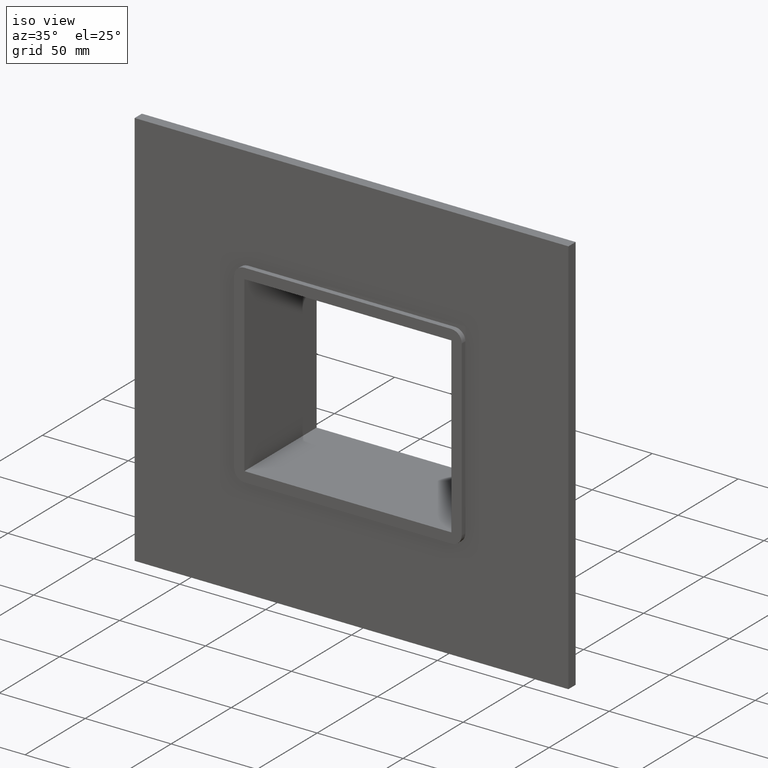
[diagram: clean part render]
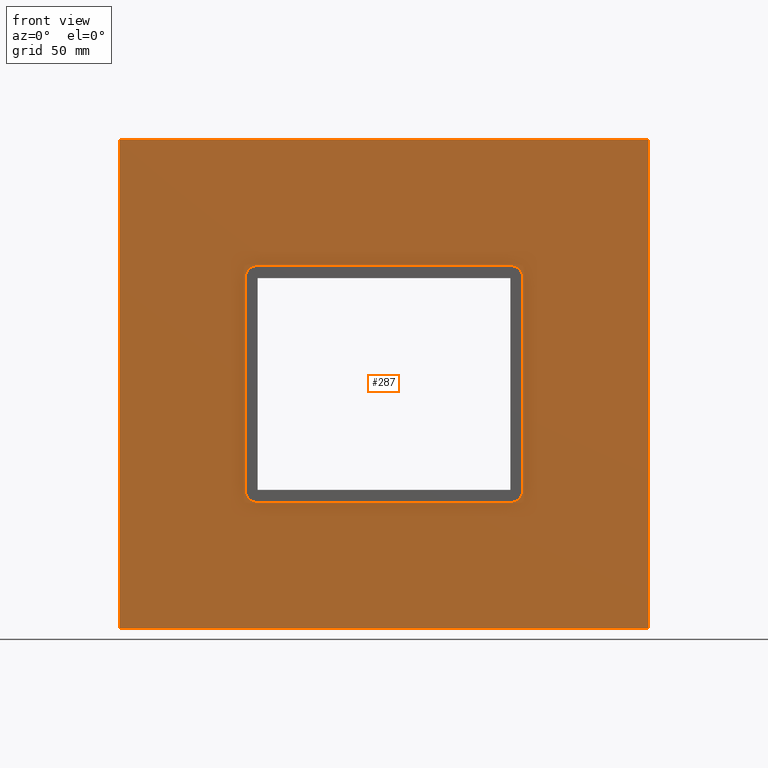
[diagram: tour spotlight — one face highlighted and labeled with its STEP entity id]
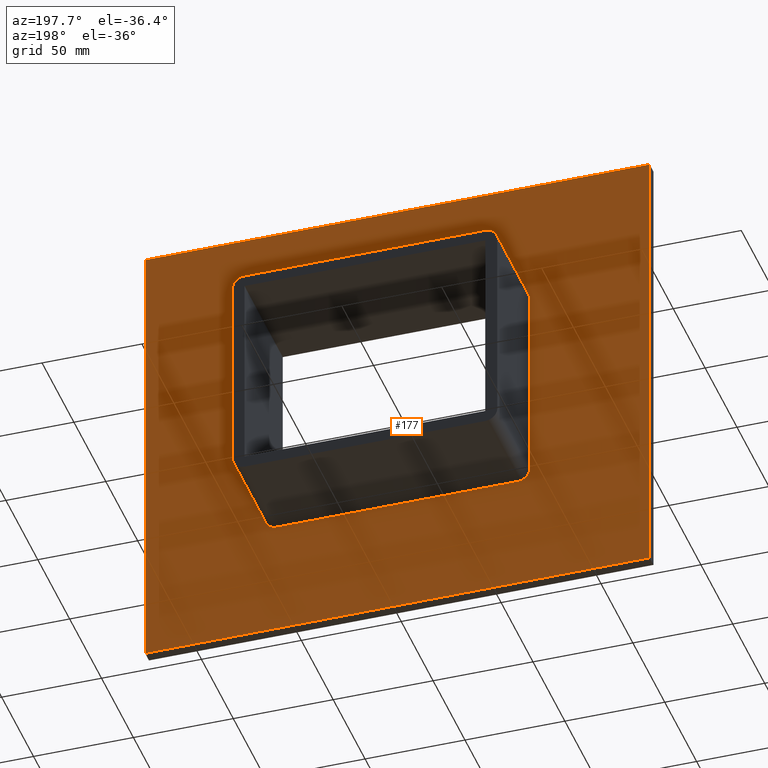
[diagram: tour spotlight — one face highlighted and labeled with its STEP entity id]
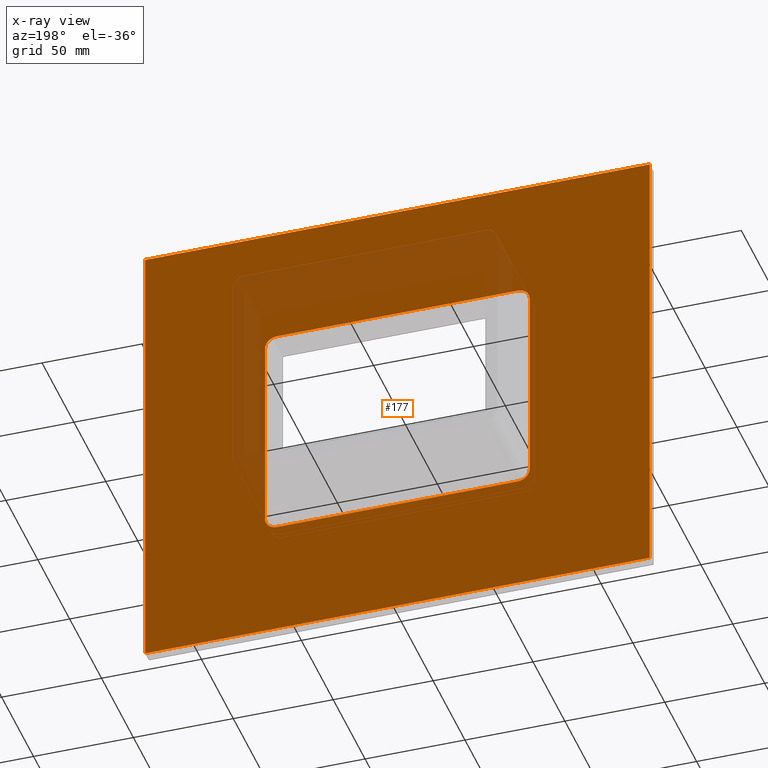
[diagram: x-ray of the same camera — body ghosted, this tour face saturated]
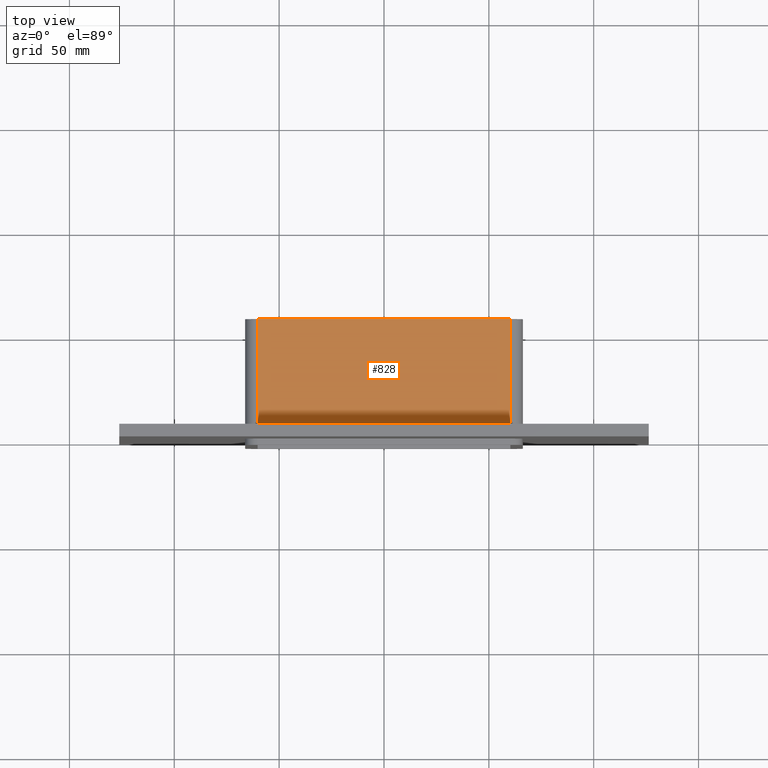
[diagram: tour spotlight — one face highlighted and labeled with its STEP entity id]
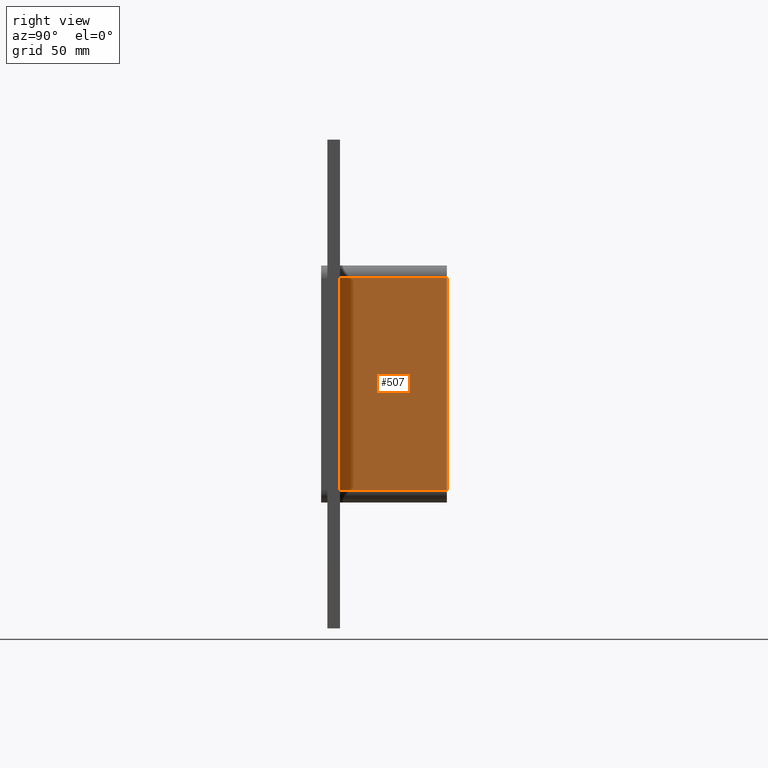
[diagram: tour spotlight — one face highlighted and labeled with its STEP entity id]
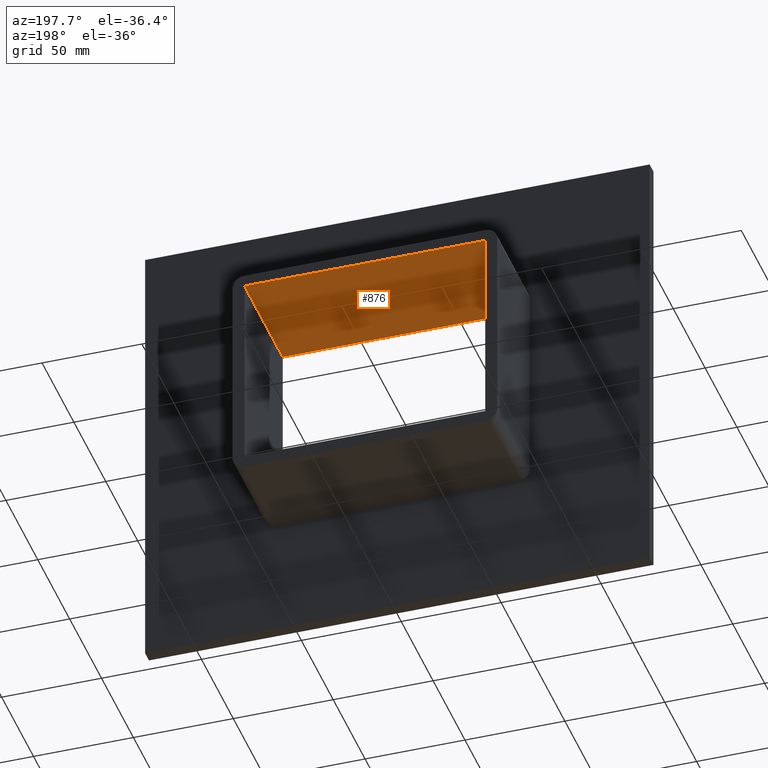
[diagram: tour spotlight — one face highlighted and labeled with its STEP entity id]
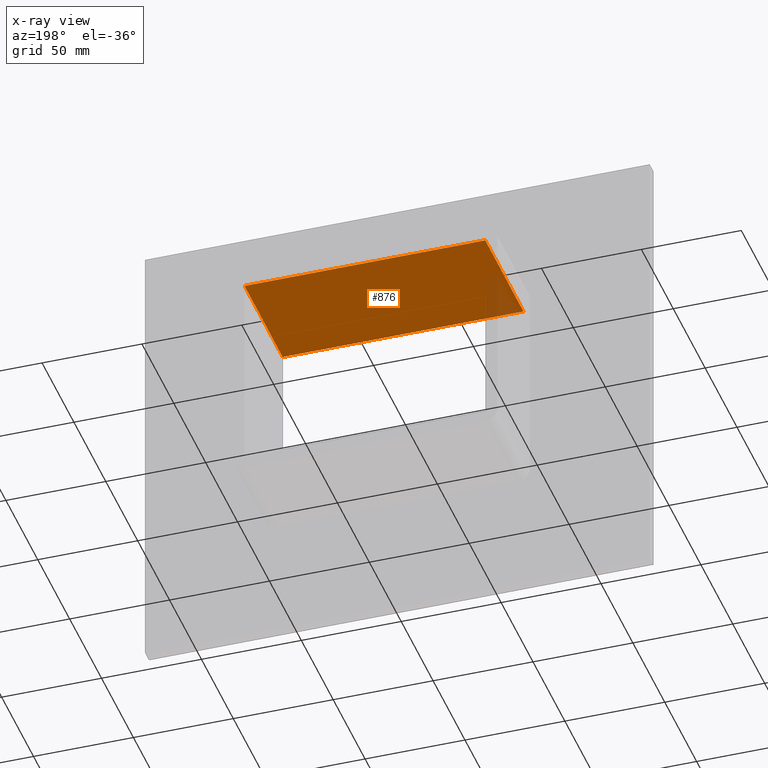
[diagram: x-ray of the same camera — body ghosted, this tour face saturated]
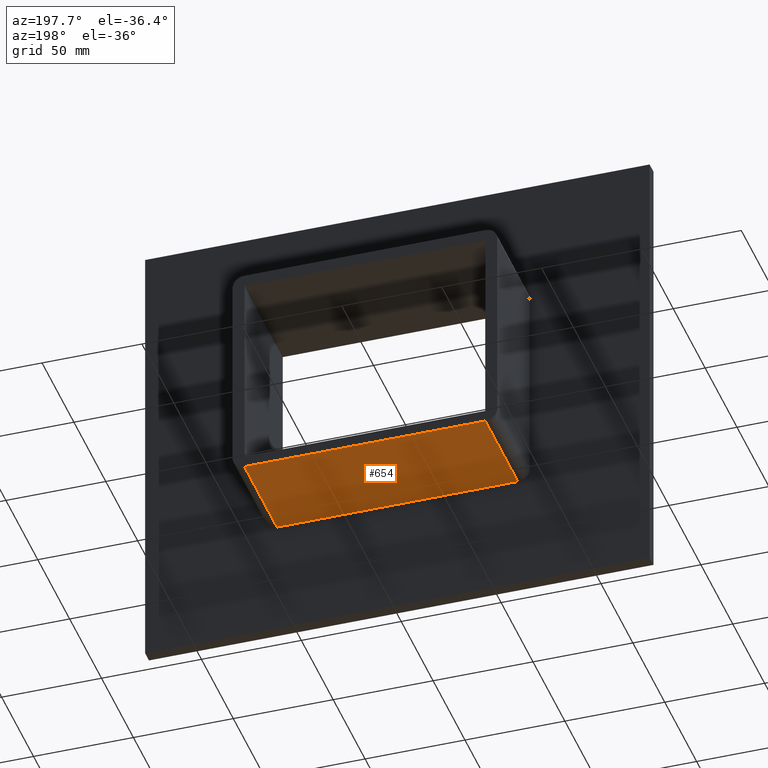
[diagram: tour spotlight — one face highlighted and labeled with its STEP entity id]
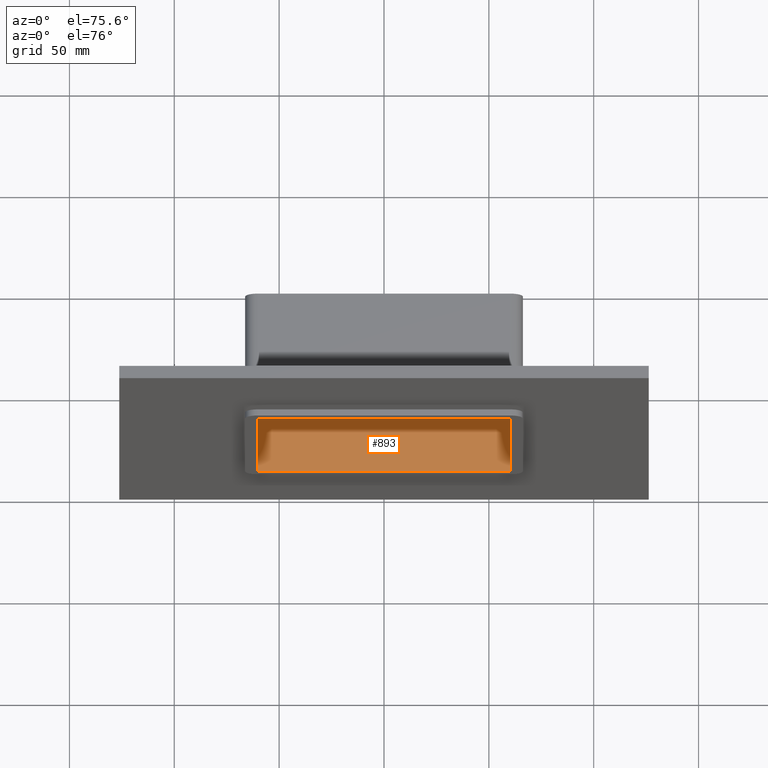
[diagram: tour spotlight — one face highlighted and labeled with its STEP entity id]
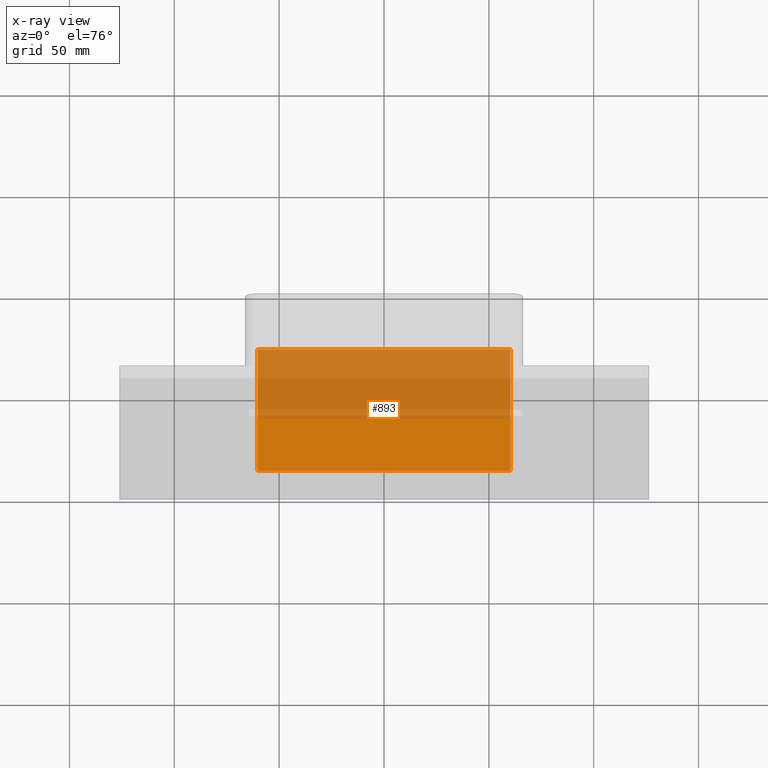
[diagram: x-ray of the same camera — body ghosted, this tour face saturated]
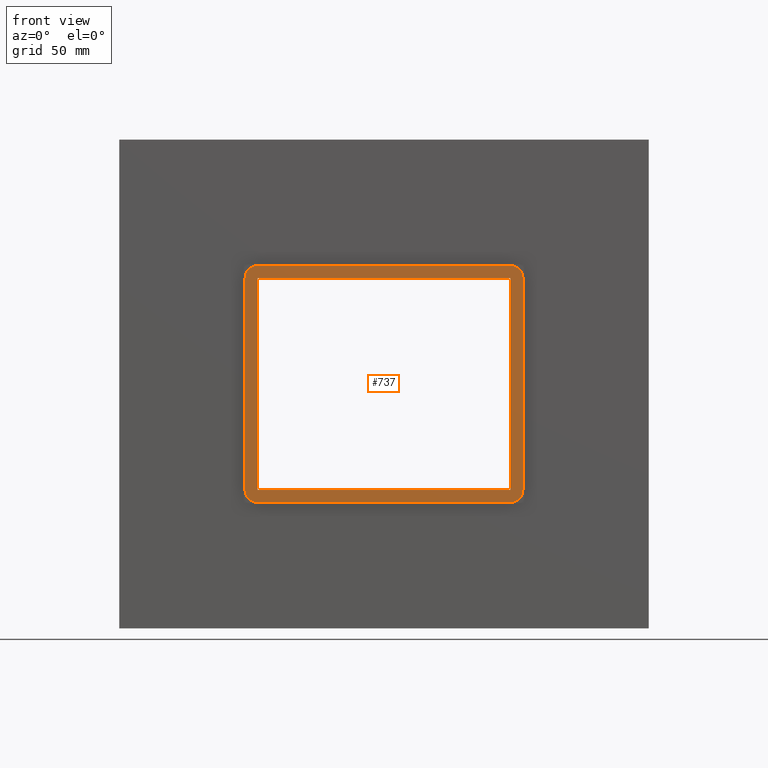
[diagram: tour spotlight — one face highlighted and labeled with its STEP entity id]
A machine part: a face-by-face anatomy tour. The part has 28 B-rep faces; the first image is the clean iso view, then the 8 largest visible faces are spotlighted one at a time (largest first), each with its STEP entity span.

Face 1 — front view, entity #287. In plain terms, the highlighted planar face has unit normal (0, 1, 0).
Definition (entity closure, byte-faithful):
#178=CARTESIAN_POINT('',(-8.781167E-015,0.0,-8.781167E-015));
#179=DIRECTION('',(0.0,1.0,0.0));
#180=DIRECTION('',(0.0,0.0,1.0));
#181=AXIS2_PLACEMENT_3D('',#178,#179,#180);
#182=PLANE('',#181);
#183=CARTESIAN_POINT('',(-126.25,0.0,116.5));
#184=VERTEX_POINT('',#183);
#185=CARTESIAN_POINT('',(126.24999999999999,0.0,116.5));
#186=VERTEX_POINT('',#185);
#187=CARTESIAN_POINT('',(-126.25,0.0,116.5));
#188=DIRECTION('',(1.0,0.0,0.0));
#189=VECTOR('',#188,252.5);
#190=LINE('',#187,#189);
#191=EDGE_CURVE('',#184,#186,#190,.T.);
#192=ORIENTED_EDGE('',*,*,#191,.F.);
#193=CARTESIAN_POINT('',(-126.25,0.0,-116.50000000000003));
#194=VERTEX_POINT('',#193);
#195=CARTESIAN_POINT('',(-126.25,0.0,-116.50000000000003));
#196=DIRECTION('',(0.0,0.0,1.0));
#197=VECTOR('',#196,233.00000000000006);
#198=LINE('',#195,#197);
#199=EDGE_CURVE('',#194,#184,#198,.T.);
#200=ORIENTED_EDGE('',*,*,#199,.F.);
#201=CARTESIAN_POINT('',(126.24999999999999,0.0,-116.50000000000003));
#202=VERTEX_POINT('',#201);
#203=CARTESIAN_POINT('',(126.24999999999999,0.0,-116.50000000000003));
#204=DIRECTION('',(-1.0,0.0,0.0));
#205=VECTOR('',#204,252.5);
#206=LINE('',#203,#205);
#207=EDGE_CURVE('',#202,#194,#206,.T.);
#208=ORIENTED_EDGE('',*,*,#207,.F.);
#209=CARTESIAN_POINT('',(126.24999999999999,0.0,116.5));
#210=DIRECTION('',(0.0,0.0,-1.0));
#211=VECTOR('',#210,233.00000000000006);
#212=LINE('',#209,#211);
#213=EDGE_CURVE('',#186,#202,#212,.T.);
#214=ORIENTED_EDGE('',*,*,#213,.F.);
#215=EDGE_LOOP('',(#192,#200,#208,#214));
#216=FACE_OUTER_BOUND('',#215,.T.);
#217=CARTESIAN_POINT('',(-66.249999999999986,0.0,-50.500000000000007));
#218=VERTEX_POINT('',#217);
#219=CARTESIAN_POINT('',(-60.249999999999986,0.0,-56.5));
#220=VERTEX_POINT('',#219);
#221=CARTESIAN_POINT('',(-60.249999999999986,0.0,-50.500000000000007));
#222=DIRECTION('',(0.0,-1.0,0.0));
#223=DIRECTION('',(-0.707106781186549,0.0,-0.707106781186546));
#224=AXIS2_PLACEMENT_3D('',#221,#222,#223);
#225=CIRCLE('',#224,6.000000000000001);
#226=EDGE_CURVE('',#218,#220,#225,.T.);
#227=ORIENTED_EDGE('',*,*,#226,.F.);
#228=CARTESIAN_POINT('',(-66.249999999999986,0.0,50.500000000000007));
#229=VERTEX_POINT('',#228);
#230=CARTESIAN_POINT('',(-66.249999999999986,0.0,50.500000000000007));
#231=DIRECTION('',(0.0,0.0,-1.0));
#232=VECTOR('',#231,101.00000000000001);
#233=LINE('',#230,#232);
#234=EDGE_CURVE('',#229,#218,#233,.T.);
#235=ORIENTED_EDGE('',*,*,#234,.F.);
#236=CARTESIAN_POINT('',(-60.249999999999986,0.0,56.5));
#237=VERTEX_POINT('',#236);
#238=CARTESIAN_POINT('',(-60.249999999999986,0.0,50.500000000000007));
#239=DIRECTION('',(0.0,-1.0,0.0));
#240=DIRECTION('',(-0.707106781186549,0.0,0.707106781186546));
#241=AXIS2_PLACEMENT_3D('',#238,#239,#240);
#242=CIRCLE('',#241,6.000000000000001);
#243=EDGE_CURVE('',#237,#229,#242,.T.);
#244=ORIENTED_EDGE('',*,*,#243,.F.);
#245=CARTESIAN_POINT('',(60.25,0.0,56.5));
#246=VERTEX_POINT('',#245);
#247=CARTESIAN_POINT('',(60.25,0.0,56.5));
#248=DIRECTION('',(-1.0,0.0,0.0));
#249=VECTOR('',#248,120.49999999999999);
#250=LINE('',#247,#249);
#251=EDGE_CURVE('',#246,#237,#250,.T.);
#252=ORIENTED_EDGE('',*,*,#251,.F.);
#253=CARTESIAN_POINT('',(66.250000000000014,0.0,50.500000000000007));
#254=VERTEX_POINT('',#253);
#255=CARTESIAN_POINT('',(60.25,0.0,50.500000000000007));
#256=DIRECTION('',(0.0,-1.0,0.0));
#257=DIRECTION('',(0.707106781186549,0.0,0.707106781186546));
#258=AXIS2_PLACEMENT_3D('',#255,#256,#257);
#259=CIRCLE('',#258,6.000000000000001);
#260=EDGE_CURVE('',#254,#246,#259,.T.);
#261=ORIENTED_EDGE('',*,*,#260,.F.);
#262=CARTESIAN_POINT('',(66.250000000000014,0.0,-50.500000000000007));
#263=VERTEX_POINT('',#262);
#264=CARTESIAN_POINT('',(66.250000000000014,0.0,-50.5));
#265=DIRECTION('',(0.0,0.0,1.0));
#266=VECTOR('',#265,101.0);
#267=LINE('',#264,#266);
#268=EDGE_CURVE('',#263,#254,#267,.T.);
#269=ORIENTED_EDGE('',*,*,#268,.F.);
#270=CARTESIAN_POINT('',(60.25,0.0,-56.5));
#271=VERTEX_POINT('',#270);
#272=CARTESIAN_POINT('',(60.25,0.0,-50.500000000000007));
#273=DIRECTION('',(0.0,-1.0,0.0));
#274=DIRECTION('',(0.707106781186549,0.0,-0.707106781186546));
#275=AXIS2_PLACEMENT_3D('',#272,#273,#274);
#276=CIRCLE('',#275,6.000000000000001);
#277=EDGE_CURVE('',#271,#263,#276,.T.);
#278=ORIENTED_EDGE('',*,*,#277,.F.);
#279=CARTESIAN_POINT('',(-60.249999999999986,0.0,-56.5));
#280=DIRECTION('',(1.0,0.0,0.0));
#281=VECTOR('',#280,120.49999999999999);
#282=LINE('',#279,#281);
#283=EDGE_CURVE('',#220,#271,#282,.T.);
#284=ORIENTED_EDGE('',*,*,#283,.F.);
#285=EDGE_LOOP('',(#227,#235,#244,#252,#261,#269,#278,#284));
#286=FACE_BOUND('',#285,.T.);
#287=ADVANCED_FACE('',(#216,#286),#182,.F.);

Face 2 — auxiliary view, entity #177. An x-ray twin of the same camera follows (body ghosted, this face saturated) — the face is partly hidden behind the body. In plain terms, the highlighted planar face has unit normal (0, 1, 0).
Definition (entity closure, byte-faithful):
#68=CARTESIAN_POINT('',(-8.781167E-015,6.000000000000001,-8.781167E-015));
#69=DIRECTION('',(0.0,1.0,0.0));
#70=DIRECTION('',(0.0,0.0,1.0));
#71=AXIS2_PLACEMENT_3D('',#68,#69,#70);
#72=PLANE('',#71);
#73=CARTESIAN_POINT('',(-126.25,6.000000000000001,116.5));
#74=VERTEX_POINT('',#73);
#75=CARTESIAN_POINT('',(126.25,6.000000000000001,116.5));
#76=VERTEX_POINT('',#75);
#77=CARTESIAN_POINT('',(-126.25,6.000000000000001,116.5));
#78=DIRECTION('',(1.0,0.0,0.0));
#79=VECTOR('',#78,252.5);
#80=LINE('',#77,#79);
#81=EDGE_CURVE('',#74,#76,#80,.T.);
#82=ORIENTED_EDGE('',*,*,#81,.T.);
#83=CARTESIAN_POINT('',(126.25,6.000000000000001,-116.50000000000004));
#84=VERTEX_POINT('',#83);
#85=CARTESIAN_POINT('',(126.24999999999999,6.000000000000001,116.5));
#86=DIRECTION('',(0.0,0.0,-1.0));
#87=VECTOR('',#86,233.00000000000006);
#88=LINE('',#85,#87);
#89=EDGE_CURVE('',#76,#84,#88,.T.);
#90=ORIENTED_EDGE('',*,*,#89,.T.);
#91=CARTESIAN_POINT('',(-126.25,6.000000000000001,-116.50000000000004));
#92=VERTEX_POINT('',#91);
#93=CARTESIAN_POINT('',(126.24999999999999,6.000000000000001,-116.50000000000003));
#94=DIRECTION('',(-1.0,0.0,0.0));
#95=VECTOR('',#94,252.5);
#96=LINE('',#93,#95);
#97=EDGE_CURVE('',#84,#92,#96,.T.);
#98=ORIENTED_EDGE('',*,*,#97,.T.);
#99=CARTESIAN_POINT('',(-126.25,6.000000000000001,-116.50000000000003));
#100=DIRECTION('',(0.0,0.0,1.0));
#101=VECTOR('',#100,233.00000000000006);
#102=LINE('',#99,#101);
#103=EDGE_CURVE('',#92,#74,#102,.T.);
#104=ORIENTED_EDGE('',*,*,#103,.T.);
#105=EDGE_LOOP('',(#82,#90,#98,#104));
#106=FACE_OUTER_BOUND('',#105,.T.);
#107=CARTESIAN_POINT('',(-60.249999999999986,6.000000000000001,-56.5));
#108=VERTEX_POINT('',#107);
#109=CARTESIAN_POINT('',(-66.249999999999986,6.000000000000001,-50.500000000000007));
#110=VERTEX_POINT('',#109);
#111=CARTESIAN_POINT('',(-60.249999999999986,6.000000000000001,-50.500000000000007));
#112=DIRECTION('',(0.0,1.0,0.0));
#113=DIRECTION('',(-0.707106781186549,0.0,-0.707106781186546));
#114=AXIS2_PLACEMENT_3D('',#111,#112,#113);
#115=CIRCLE('',#114,6.000000000000001);
#116=EDGE_CURVE('',#108,#110,#115,.T.);
#117=ORIENTED_EDGE('',*,*,#116,.F.);
#118=CARTESIAN_POINT('',(60.25,6.000000000000001,-56.5));
#119=VERTEX_POINT('',#118);
#120=CARTESIAN_POINT('',(60.25,6.000000000000001,-56.5));
#121=DIRECTION('',(-1.0,0.0,0.0));
#122=VECTOR('',#121,120.49999999999999);
#123=LINE('',#120,#122);
#124=EDGE_CURVE('',#119,#108,#123,.T.);
#125=ORIENTED_EDGE('',*,*,#124,.F.);
#126=CARTESIAN_POINT('',(66.250000000000014,6.000000000000001,-50.500000000000007));
#127=VERTEX_POINT('',#126);
#128=CARTESIAN_POINT('',(60.25,6.000000000000001,-50.500000000000007));
#129=DIRECTION('',(0.0,1.0,0.0));
#130=DIRECTION('',(0.707106781186549,0.0,-0.707106781186546));
#131=AXIS2_PLACEMENT_3D('',#128,#129,#130);
#132=CIRCLE('',#131,6.000000000000001);
#133=EDGE_CURVE('',#127,#119,#132,.T.);
#134=ORIENTED_EDGE('',*,*,#133,.F.);
#135=CARTESIAN_POINT('',(66.250000000000014,6.000000000000001,50.500000000000007));
#136=VERTEX_POINT('',#135);
#137=CARTESIAN_POINT('',(66.250000000000014,6.000000000000001,50.500000000000007));
#138=DIRECTION('',(0.0,0.0,-1.0));
#139=VECTOR('',#138,101.0);
#140=LINE('',#137,#139);
#141=EDGE_CURVE('',#136,#127,#140,.T.);
#142=ORIENTED_EDGE('',*,*,#141,.F.);
#143=CARTESIAN_POINT('',(60.25,6.000000000000001,56.5));
#144=VERTEX_POINT('',#143);
#145=CARTESIAN_POINT('',(60.25,6.000000000000001,50.500000000000007));
#146=DIRECTION('',(0.0,1.0,0.0));
#147=DIRECTION('',(0.707106781186549,0.0,0.707106781186546));
#148=AXIS2_PLACEMENT_3D('',#145,#146,#147);
#149=CIRCLE('',#148,6.000000000000001);
#150=EDGE_CURVE('',#144,#136,#149,.T.);
#151=ORIENTED_EDGE('',*,*,#150,.F.);
#152=CARTESIAN_POINT('',(-60.249999999999986,6.000000000000001,56.5));
#153=VERTEX_POINT('',#152);
#154=CARTESIAN_POINT('',(-60.249999999999986,6.000000000000001,56.5));
#155=DIRECTION('',(1.0,0.0,0.0));
#156=VECTOR('',#155,120.49999999999999);
#157=LINE('',#154,#156);
#158=EDGE_CURVE('',#153,#144,#157,.T.);
#159=ORIENTED_EDGE('',*,*,#158,.F.);
#160=CARTESIAN_POINT('',(-66.249999999999986,6.000000000000001,50.500000000000007));
#161=VERTEX_POINT('',#160);
#162=CARTESIAN_POINT('',(-60.249999999999986,6.000000000000001,50.500000000000007));
#163=DIRECTION('',(0.0,1.0,0.0));
#164=DIRECTION('',(-0.707106781186549,0.0,0.707106781186546));
#165=AXIS2_PLACEMENT_3D('',#162,#163,#164);
#166=CIRCLE('',#165,6.000000000000001);
#167=EDGE_CURVE('',#161,#153,#166,.T.);
#168=ORIENTED_EDGE('',*,*,#167,.F.);
#169=CARTESIAN_POINT('',(-66.249999999999986,6.000000000000001,-50.500000000000007));
#170=DIRECTION('',(0.0,0.0,1.0));
#171=VECTOR('',#170,101.00000000000001);
#172=LINE('',#169,#171);
#173=EDGE_CURVE('',#110,#161,#172,.T.);
#174=ORIENTED_EDGE('',*,*,#173,.F.);
#175=EDGE_LOOP('',(#117,#125,#134,#142,#151,#159,#168,#174));
#176=FACE_BOUND('',#175,.T.);
#177=ADVANCED_FACE('',(#106,#176),#72,.T.);

Face 3 — top view, entity #828. In plain terms, the highlighted planar face has unit normal (0, 0, 1).
Definition (entity closure, byte-faithful):
#143=CARTESIAN_POINT('',(60.25,6.000000000000001,56.5));
#144=VERTEX_POINT('',#143);
#152=CARTESIAN_POINT('',(-60.249999999999986,6.000000000000001,56.5));
#153=VERTEX_POINT('',#152);
#154=CARTESIAN_POINT('',(-60.249999999999986,6.000000000000001,56.5));
#155=DIRECTION('',(1.0,0.0,0.0));
#156=VECTOR('',#155,120.49999999999999);
#157=LINE('',#154,#156);
#158=EDGE_CURVE('',#153,#144,#157,.T.);
#442=CARTESIAN_POINT('',(60.249999999999993,57.0,56.5));
#443=VERTEX_POINT('',#442);
#451=CARTESIAN_POINT('',(60.25,57.0,56.5));
#452=DIRECTION('',(0.0,-1.0,0.0));
#453=VECTOR('',#452,51.0);
#454=LINE('',#451,#453);
#455=EDGE_CURVE('',#443,#144,#454,.T.);
#793=CARTESIAN_POINT('',(-60.249999999999986,57.0,56.5));
#794=VERTEX_POINT('',#793);
#795=CARTESIAN_POINT('',(-60.249999999999986,6.000000000000001,56.5));
#796=DIRECTION('',(0.0,1.0,0.0));
#797=VECTOR('',#796,51.0);
#798=LINE('',#795,#797);
#799=EDGE_CURVE('',#153,#794,#798,.T.);
#812=CARTESIAN_POINT('',(-66.249999999999986,0.0,56.5));
#813=DIRECTION('',(0.0,0.0,1.0));
#814=DIRECTION('',(1.0,0.0,0.0));
#815=AXIS2_PLACEMENT_3D('',#812,#813,#814);
#816=PLANE('',#815);
#817=ORIENTED_EDGE('',*,*,#158,.T.);
#818=ORIENTED_EDGE('',*,*,#455,.F.);
#819=CARTESIAN_POINT('',(-60.249999999999979,57.0,56.5));
#820=DIRECTION('',(1.0,0.0,0.0));
#821=VECTOR('',#820,120.49999999999997);
#822=LINE('',#819,#821);
#823=EDGE_CURVE('',#794,#443,#822,.T.);
#824=ORIENTED_EDGE('',*,*,#823,.F.);
#825=ORIENTED_EDGE('',*,*,#799,.F.);
#826=EDGE_LOOP('',(#817,#818,#824,#825));
#827=FACE_OUTER_BOUND('',#826,.T.);
#828=ADVANCED_FACE('',(#827),#816,.T.);

Face 4 — right view, entity #507. In plain terms, the highlighted planar face has unit normal (1, 0, 0).
Definition (entity closure, byte-faithful):
#126=CARTESIAN_POINT('',(66.250000000000014,6.000000000000001,-50.500000000000007));
#127=VERTEX_POINT('',#126);
#135=CARTESIAN_POINT('',(66.250000000000014,6.000000000000001,50.500000000000007));
#136=VERTEX_POINT('',#135);
#137=CARTESIAN_POINT('',(66.250000000000014,6.000000000000001,50.500000000000007));
#138=DIRECTION('',(0.0,0.0,-1.0));
#139=VECTOR('',#138,101.0);
#140=LINE('',#137,#139);
#141=EDGE_CURVE('',#136,#127,#140,.T.);
#434=CARTESIAN_POINT('',(66.250000000000014,57.0,50.500000000000007));
#435=VERTEX_POINT('',#434);
#436=CARTESIAN_POINT('',(66.250000000000014,6.000000000000001,50.500000000000007));
#437=DIRECTION('',(0.0,1.0,0.0));
#438=VECTOR('',#437,51.0);
#439=LINE('',#436,#438);
#440=EDGE_CURVE('',#136,#435,#439,.T.);
#484=CARTESIAN_POINT('',(66.250000000000014,0.0,56.5));
#485=DIRECTION('',(1.0,0.0,0.0));
#486=DIRECTION('',(0.0,0.0,-1.0));
#487=AXIS2_PLACEMENT_3D('',#484,#485,#486);
#488=PLANE('',#487);
#489=ORIENTED_EDGE('',*,*,#141,.T.);
#490=CARTESIAN_POINT('',(66.250000000000014,57.0,-50.500000000000007));
#491=VERTEX_POINT('',#490);
#492=CARTESIAN_POINT('',(66.250000000000014,57.0,-50.500000000000007));
#493=DIRECTION('',(0.0,-1.0,0.0));
#494=VECTOR('',#493,51.0);
#495=LINE('',#492,#494);
#496=EDGE_CURVE('',#491,#127,#495,.T.);
#497=ORIENTED_EDGE('',*,*,#496,.F.);
#498=CARTESIAN_POINT('',(66.250000000000014,57.0,50.5));
#499=DIRECTION('',(0.0,0.0,-1.0));
#500=VECTOR('',#499,101.00000000000001);
#501=LINE('',#498,#500);
#502=EDGE_CURVE('',#435,#491,#501,.T.);
#503=ORIENTED_EDGE('',*,*,#502,.F.);
#504=ORIENTED_EDGE('',*,*,#440,.F.);
#505=EDGE_LOOP('',(#489,#497,#503,#504));
#506=FACE_OUTER_BOUND('',#505,.T.);
#507=ADVANCED_FACE('',(#506),#488,.T.);

Face 5 — auxiliary view, entity #876. An x-ray twin of the same camera follows (body ghosted, this face saturated) — the face is partly hidden behind the body. In plain terms, the highlighted planar face has unit normal (0, 0, 1).
Definition (entity closure, byte-faithful):
#371=CARTESIAN_POINT('',(-60.249999999999993,57.0,50.500000000000007));
#372=VERTEX_POINT('',#371);
#379=CARTESIAN_POINT('',(-60.249999999999993,-3.0,50.500000000000007));
#380=VERTEX_POINT('',#379);
#381=CARTESIAN_POINT('',(-60.249999999999993,-3.0,50.500000000000007));
#382=DIRECTION('',(0.0,1.0,0.0));
#383=VECTOR('',#382,60.0);
#384=LINE('',#381,#383);
#385=EDGE_CURVE('',#380,#372,#384,.T.);
#712=CARTESIAN_POINT('',(60.249999999999993,-3.0,50.500000000000007));
#713=VERTEX_POINT('',#712);
#729=CARTESIAN_POINT('',(-60.249999999999993,-3.0,50.500000000000007));
#730=DIRECTION('',(1.0,0.0,0.0));
#731=VECTOR('',#730,120.49999999999997);
#732=LINE('',#729,#731);
#733=EDGE_CURVE('',#380,#713,#732,.T.);
#843=CARTESIAN_POINT('',(60.249999999999993,57.0,50.500000000000007));
#844=VERTEX_POINT('',#843);
#845=CARTESIAN_POINT('',(60.249999999999993,-3.0,50.500000000000007));
#846=DIRECTION('',(0.0,1.0,0.0));
#847=VECTOR('',#846,60.0);
#848=LINE('',#845,#847);
#849=EDGE_CURVE('',#713,#844,#848,.T.);
#860=CARTESIAN_POINT('',(-60.249999999999993,0.0,50.500000000000007));
#861=DIRECTION('',(0.0,0.0,1.0));
#862=DIRECTION('',(1.0,0.0,0.0));
#863=AXIS2_PLACEMENT_3D('',#860,#861,#862);
#864=PLANE('',#863);
#865=ORIENTED_EDGE('',*,*,#385,.T.);
#866=CARTESIAN_POINT('',(60.249999999999979,57.0,50.500000000000007));
#867=DIRECTION('',(-1.0,0.0,0.0));
#868=VECTOR('',#867,120.49999999999997);
#869=LINE('',#866,#868);
#870=EDGE_CURVE('',#844,#372,#869,.T.);
#871=ORIENTED_EDGE('',*,*,#870,.F.);
#872=ORIENTED_EDGE('',*,*,#849,.F.);
#873=ORIENTED_EDGE('',*,*,#733,.F.);
#874=EDGE_LOOP('',(#865,#871,#872,#873));
#875=FACE_OUTER_BOUND('',#874,.T.);
#876=ADVANCED_FACE('',(#875),#864,.F.);

Face 6 — auxiliary view, entity #654. In plain terms, the highlighted planar face has unit normal (0, 0, -1).
Definition (entity closure, byte-faithful):
#107=CARTESIAN_POINT('',(-60.249999999999986,6.000000000000001,-56.5));
#108=VERTEX_POINT('',#107);
#118=CARTESIAN_POINT('',(60.25,6.000000000000001,-56.5));
#119=VERTEX_POINT('',#118);
#120=CARTESIAN_POINT('',(60.25,6.000000000000001,-56.5));
#121=DIRECTION('',(-1.0,0.0,0.0));
#122=VECTOR('',#121,120.49999999999999);
#123=LINE('',#120,#122);
#124=EDGE_CURVE('',#119,#108,#123,.T.);
#563=CARTESIAN_POINT('',(60.25,57.0,-56.5));
#564=VERTEX_POINT('',#563);
#565=CARTESIAN_POINT('',(60.25,6.000000000000001,-56.5));
#566=DIRECTION('',(0.0,1.0,0.0));
#567=VECTOR('',#566,51.0);
#568=LINE('',#565,#567);
#569=EDGE_CURVE('',#119,#564,#568,.T.);
#631=CARTESIAN_POINT('',(66.250000000000014,0.0,-56.5));
#632=DIRECTION('',(0.0,0.0,-1.0));
#633=DIRECTION('',(-1.0,0.0,0.0));
#634=AXIS2_PLACEMENT_3D('',#631,#632,#633);
#635=PLANE('',#634);
#636=ORIENTED_EDGE('',*,*,#124,.T.);
#637=CARTESIAN_POINT('',(-60.249999999999979,57.0,-56.5));
#638=VERTEX_POINT('',#637);
#639=CARTESIAN_POINT('',(-60.249999999999986,57.0,-56.5));
#640=DIRECTION('',(0.0,-1.0,0.0));
#641=VECTOR('',#640,51.0);
#642=LINE('',#639,#641);
#643=EDGE_CURVE('',#638,#108,#642,.T.);
#644=ORIENTED_EDGE('',*,*,#643,.F.);
#645=CARTESIAN_POINT('',(60.250000000000007,57.0,-56.5));
#646=DIRECTION('',(-1.0,0.0,0.0));
#647=VECTOR('',#646,120.49999999999997);
#648=LINE('',#645,#647);
#649=EDGE_CURVE('',#564,#638,#648,.T.);
#650=ORIENTED_EDGE('',*,*,#649,.F.);
#651=ORIENTED_EDGE('',*,*,#569,.F.);
#652=EDGE_LOOP('',(#636,#644,#650,#651));
#653=FACE_OUTER_BOUND('',#652,.T.);
#654=ADVANCED_FACE('',(#653),#635,.T.);

Face 7 — auxiliary view, entity #893. An x-ray twin of the same camera follows (body ghosted, this face saturated) — the face is partly hidden behind the body. In plain terms, the highlighted planar face has unit normal (0, 0, -1).
Definition (entity closure, byte-faithful):
#361=CARTESIAN_POINT('',(-60.249999999999993,-3.0,-50.500000000000007));
#362=VERTEX_POINT('',#361);
#363=CARTESIAN_POINT('',(-60.249999999999993,57.0,-50.500000000000007));
#364=VERTEX_POINT('',#363);
#365=CARTESIAN_POINT('',(-60.249999999999993,-3.0,-50.500000000000007));
#366=DIRECTION('',(0.0,1.0,0.0));
#367=VECTOR('',#366,60.0);
#368=LINE('',#365,#367);
#369=EDGE_CURVE('',#362,#364,#368,.T.);
#714=CARTESIAN_POINT('',(60.249999999999993,-3.0,-50.500000000000007));
#715=VERTEX_POINT('',#714);
#722=CARTESIAN_POINT('',(60.249999999999993,-3.0,-50.500000000000007));
#723=DIRECTION('',(-1.0,0.0,0.0));
#724=VECTOR('',#723,120.5);
#725=LINE('',#722,#724);
#726=EDGE_CURVE('',#715,#362,#725,.T.);
#834=CARTESIAN_POINT('',(60.249999999999993,57.0,-50.500000000000007));
#835=VERTEX_POINT('',#834);
#836=CARTESIAN_POINT('',(60.249999999999993,56.999999999999993,-50.500000000000007));
#837=DIRECTION('',(0.0,-1.0,0.0));
#838=VECTOR('',#837,59.999999999999993);
#839=LINE('',#836,#838);
#840=EDGE_CURVE('',#835,#715,#839,.T.);
#877=CARTESIAN_POINT('',(60.249999999999993,0.0,-50.500000000000007));
#878=DIRECTION('',(0.0,0.0,-1.0));
#879=DIRECTION('',(-1.0,0.0,0.0));
#880=AXIS2_PLACEMENT_3D('',#877,#878,#879);
#881=PLANE('',#880);
#882=ORIENTED_EDGE('',*,*,#369,.F.);
#883=ORIENTED_EDGE('',*,*,#726,.F.);
#884=ORIENTED_EDGE('',*,*,#840,.F.);
#885=CARTESIAN_POINT('',(-60.25,57.0,-50.500000000000007));
#886=DIRECTION('',(1.0,0.0,0.0));
#887=VECTOR('',#886,120.5);
#888=LINE('',#885,#887);
#889=EDGE_CURVE('',#364,#835,#888,.T.);
#890=ORIENTED_EDGE('',*,*,#889,.F.);
#891=EDGE_LOOP('',(#882,#883,#884,#890));
#892=FACE_OUTER_BOUND('',#891,.T.);
#893=ADVANCED_FACE('',(#892),#881,.F.);

Face 8 — front view, entity #737. In plain terms, the highlighted planar face has unit normal (0, 1, 0).
Definition (entity closure, byte-faithful):
#361=CARTESIAN_POINT('',(-60.249999999999993,-3.0,-50.500000000000007));
#362=VERTEX_POINT('',#361);
#379=CARTESIAN_POINT('',(-60.249999999999993,-3.0,50.500000000000007));
#380=VERTEX_POINT('',#379);
#387=CARTESIAN_POINT('',(-60.249999999999993,-3.0,-50.500000000000007));
#388=DIRECTION('',(0.0,0.0,1.0));
#389=VECTOR('',#388,101.00000000000003);
#390=LINE('',#387,#389);
#391=EDGE_CURVE('',#362,#380,#390,.T.);
#402=CARTESIAN_POINT('',(60.249999999999993,-3.0,56.5));
#403=VERTEX_POINT('',#402);
#410=CARTESIAN_POINT('',(66.250000000000014,-3.0,50.500000000000007));
#411=VERTEX_POINT('',#410);
#412=CARTESIAN_POINT('',(60.25,-3.0,50.500000000000007));
#413=DIRECTION('',(0.0,1.0,0.0));
#414=DIRECTION('',(0.707106781186549,0.0,0.707106781186546));
#415=AXIS2_PLACEMENT_3D('',#412,#413,#414);
#416=CIRCLE('',#415,6.000000000000001);
#417=EDGE_CURVE('',#403,#411,#416,.T.);
#467=CARTESIAN_POINT('',(66.250000000000014,-3.0,-50.500000000000007));
#468=VERTEX_POINT('',#467);
#469=CARTESIAN_POINT('',(66.250000000000014,-3.0,-50.500000000000014));
#470=DIRECTION('',(0.0,0.0,1.0));
#471=VECTOR('',#470,101.00000000000001);
#472=LINE('',#469,#471);
#473=EDGE_CURVE('',#468,#411,#472,.T.);
#514=CARTESIAN_POINT('',(-60.249999999999986,-3.0,56.5));
#515=VERTEX_POINT('',#514);
#522=CARTESIAN_POINT('',(60.25,-3.0,56.5));
#523=DIRECTION('',(-1.0,0.0,0.0));
#524=VECTOR('',#523,120.49999999999997);
#525=LINE('',#522,#524);
#526=EDGE_CURVE('',#403,#515,#525,.T.);
#539=CARTESIAN_POINT('',(60.25,-3.0,-56.5));
#540=VERTEX_POINT('',#539);
#541=CARTESIAN_POINT('',(60.25,-3.0,-50.500000000000007));
#542=DIRECTION('',(0.0,1.0,0.0));
#543=DIRECTION('',(0.707106781186549,0.0,-0.707106781186546));
#544=AXIS2_PLACEMENT_3D('',#541,#542,#543);
#545=CIRCLE('',#544,6.000000000000001);
#546=EDGE_CURVE('',#468,#540,#545,.T.);
#588=CARTESIAN_POINT('',(-66.249999999999986,-3.0,50.500000000000007));
#589=VERTEX_POINT('',#588);
#596=CARTESIAN_POINT('',(-60.249999999999986,-3.0,50.500000000000007));
#597=DIRECTION('',(0.0,1.0,0.0));
#598=DIRECTION('',(-0.707106781186549,0.0,0.707106781186546));
#599=AXIS2_PLACEMENT_3D('',#596,#597,#598);
#600=CIRCLE('',#599,6.000000000000001);
#601=EDGE_CURVE('',#589,#515,#600,.T.);
#614=CARTESIAN_POINT('',(-60.249999999999979,-3.0,-56.5));
#615=VERTEX_POINT('',#614);
#616=CARTESIAN_POINT('',(-60.249999999999972,-3.0,-56.5));
#617=DIRECTION('',(1.0,0.0,0.0));
#618=VECTOR('',#617,120.49999999999997);
#619=LINE('',#616,#618);
#620=EDGE_CURVE('',#615,#540,#619,.T.);
#661=CARTESIAN_POINT('',(-66.249999999999986,-3.0,-50.500000000000007));
#662=VERTEX_POINT('',#661);
#669=CARTESIAN_POINT('',(-66.249999999999986,-3.0,50.500000000000014));
#670=DIRECTION('',(0.0,0.0,-1.0));
#671=VECTOR('',#670,101.00000000000001);
#672=LINE('',#669,#671);
#673=EDGE_CURVE('',#589,#662,#672,.T.);
#686=CARTESIAN_POINT('',(-60.249999999999986,-3.0,-50.500000000000007));
#687=DIRECTION('',(0.0,1.0,0.0));
#688=DIRECTION('',(-0.707106781186549,0.0,-0.707106781186546));
#689=AXIS2_PLACEMENT_3D('',#686,#687,#688);
#690=CIRCLE('',#689,6.000000000000001);
#691=EDGE_CURVE('',#615,#662,#690,.T.);
#697=CARTESIAN_POINT('',(6.738217E-015,-3.0,0.0));
#698=DIRECTION('',(0.0,1.0,0.0));
#699=DIRECTION('',(0.0,0.0,1.0));
#700=AXIS2_PLACEMENT_3D('',#697,#698,#699);
#701=PLANE('',#700);
#702=ORIENTED_EDGE('',*,*,#546,.F.);
#703=ORIENTED_EDGE('',*,*,#473,.T.);
#704=ORIENTED_EDGE('',*,*,#417,.F.);
#705=ORIENTED_EDGE('',*,*,#526,.T.);
#706=ORIENTED_EDGE('',*,*,#601,.F.);
#707=ORIENTED_EDGE('',*,*,#673,.T.);
#708=ORIENTED_EDGE('',*,*,#691,.F.);
#709=ORIENTED_EDGE('',*,*,#620,.T.);
#710=EDGE_LOOP('',(#702,#703,#704,#705,#706,#707,#708,#709));
#711=FACE_OUTER_BOUND('',#710,.T.);
#712=CARTESIAN_POINT('',(60.249999999999993,-3.0,50.500000000000007));
#713=VERTEX_POINT('',#712);
#714=CARTESIAN_POINT('',(60.249999999999993,-3.0,-50.500000000000007));
#715=VERTEX_POINT('',#714);
#716=CARTESIAN_POINT('',(60.249999999999993,-3.0,50.500000000000007));
#717=DIRECTION('',(0.0,0.0,-1.0));
#718=VECTOR('',#717,101.00000000000003);
#719=LINE('',#716,#718);
#720=EDGE_CURVE('',#713,#715,#719,.T.);
#721=ORIENTED_EDGE('',*,*,#720,.T.);
#722=CARTESIAN_POINT('',(60.249999999999993,-3.0,-50.500000000000007));
#723=DIRECTION('',(-1.0,0.0,0.0));
#724=VECTOR('',#723,120.5);
#725=LINE('',#722,#724);
#726=EDGE_CURVE('',#715,#362,#725,.T.);
#727=ORIENTED_EDGE('',*,*,#726,.T.);
#728=ORIENTED_EDGE('',*,*,#391,.T.);
#729=CARTESIAN_POINT('',(-60.249999999999993,-3.0,50.500000000000007));
#730=DIRECTION('',(1.0,0.0,0.0));
#731=VECTOR('',#730,120.49999999999997);
#732=LINE('',#729,#731);
#733=EDGE_CURVE('',#380,#713,#732,.T.);
#734=ORIENTED_EDGE('',*,*,#733,.T.);
#735=EDGE_LOOP('',(#721,#727,#728,#734));
#736=FACE_BOUND('',#735,.T.);
#737=ADVANCED_FACE('',(#711,#736),#701,.F.);